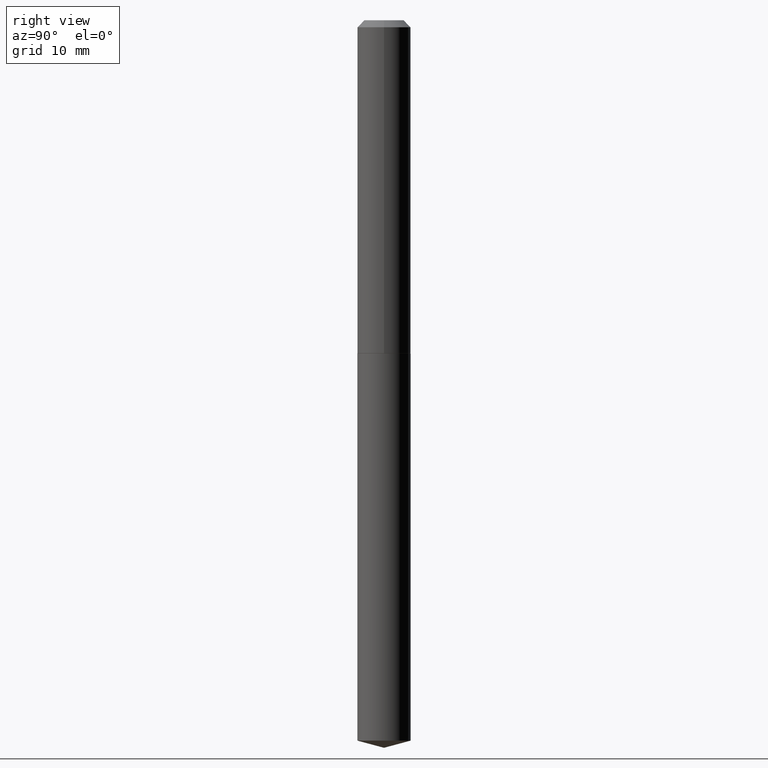
[diagram: clean part render]
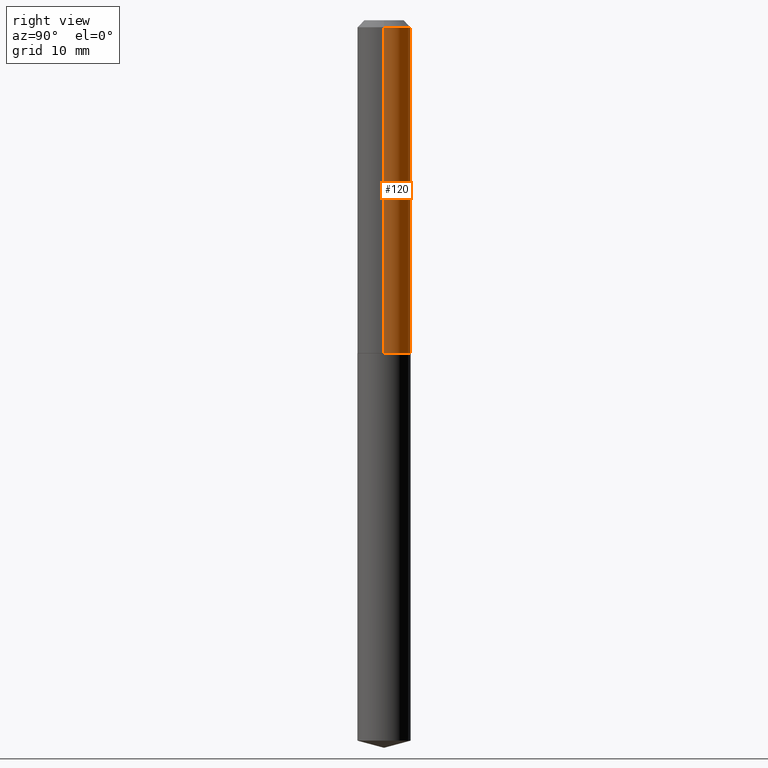
[diagram: same view with one face highlighted and labeled with its STEP entity id]
A machine part, right view. The second image highlights one B-rep face of the part: STEP entity #120.
In plain terms, the highlighted cylindrical surface (edge-blend (fillet) strip) has radius 3.0226 mm, axis along (-0, 0, 1).
Its self-contained STEP definition (entity closure, byte-faithful):
#3 = VERTEX_POINT ( 'NONE', #47 ) ;
#5 = LINE ( 'NONE', #125, #323 ) ;
#6 = FACE_OUTER_BOUND ( 'NONE', #91, .T. ) ;
#27 = DIRECTION ( 'NONE',  ( -2.445468806185136877E-29, 3.491481338843145188E-15, 1.000000000000000000 ) ) ;
#47 = CARTESIAN_POINT ( 'NONE',  ( 0.1190000000000001890, -6.024551050173846263E-15, -1.487500000000000266 ) ) ;
#48 = CARTESIAN_POINT ( 'NONE',  ( -0.1190000000000001890, -4.348032635974659038E-15, -1.487500000000000266 ) ) ;
#54 = CARTESIAN_POINT ( 'NONE',  ( 7.642090019328600035E-31, -1.091087918388489897E-16, -0.03125000000000020123 ) ) ;
#62 = CYLINDRICAL_SURFACE ( 'NONE', #105, 0.1190000000000001057 ) ;
#77 = DIRECTION ( 'NONE',  ( -2.445468806185136597E-29, 3.491481338843145583E-15, 1.000000000000000000 ) ) ;
#87 = DIRECTION ( 'NONE',  ( -2.445468806185136597E-29, 3.491481338843145583E-15, 1.000000000000000000 ) ) ;
#91 = EDGE_LOOP ( 'NONE', ( #130, #104, #333, #198 ) ) ;
#94 = VERTEX_POINT ( 'NONE', #48 ) ;
#104 = ORIENTED_EDGE ( 'NONE', *, *, #189, .T. ) ;
#105 = AXIS2_PLACEMENT_3D ( 'NONE', #365, #222, #300 ) ;
#118 = DIRECTION ( 'NONE',  ( 1.000000000000000000, -6.982962677686267499E-15, 0.000000000000000000 ) ) ;
#120 = ADVANCED_FACE ( 'NONE', ( #6 ), #62, .T. ) ;
#125 = CARTESIAN_POINT ( 'NONE',  ( 0.1190000000000001057, -8.309725586446664643E-16, 5.802650363197168610E-30 ) ) ;
#130 = ORIENTED_EDGE ( 'NONE', *, *, #149, .T. ) ;
#148 = LINE ( 'NONE', #290, #157 ) ;
#149 = EDGE_CURVE ( 'NONE', #3, #94, #190, .T. ) ;
#157 = VECTOR ( 'NONE', #27, 39.37007874015748143 ) ;
#162 = VERTEX_POINT ( 'NONE', #263 ) ;
#172 = EDGE_CURVE ( 'NONE', #316, #162, #357, .T. ) ;
#179 = AXIS2_PLACEMENT_3D ( 'NONE', #347, #77, #197 ) ;
#189 = EDGE_CURVE ( 'NONE', #94, #162, #148, .T. ) ;
#190 = CIRCLE ( 'NONE', #179, 0.1190000000000001890 ) ;
#197 = DIRECTION ( 'NONE',  ( 1.000000000000000000, -6.982962677686265133E-15, 0.000000000000000000 ) ) ;
#198 = ORIENTED_EDGE ( 'NONE', *, *, #364, .F. ) ;
#222 = DIRECTION ( 'NONE',  ( -2.445468806185136597E-29, 3.491481338843145583E-15, 1.000000000000000000 ) ) ;
#256 = AXIS2_PLACEMENT_3D ( 'NONE', #54, #87, #118 ) ;
#263 = CARTESIAN_POINT ( 'NONE',  ( -0.1190000000000000085, -1.805797786129493689E-15, -0.03125000000000020123 ) ) ;
#290 = CARTESIAN_POINT ( 'NONE',  ( -0.1190000000000001057, 8.455458555545199722E-16, -5.853532757403342650E-30 ) ) ;
#294 = CARTESIAN_POINT ( 'NONE',  ( 0.1190000000000000085, -9.400813504835147761E-16, -0.03125000000000020123 ) ) ;
#300 = DIRECTION ( 'NONE',  ( 1.000000000000000000, -6.982962677686266711E-15, 4.876176775795935793E-29 ) ) ;
#316 = VERTEX_POINT ( 'NONE', #294 ) ;
#323 = VECTOR ( 'NONE', #334, 39.37007874015748143 ) ;
#333 = ORIENTED_EDGE ( 'NONE', *, *, #172, .F. ) ;
#334 = DIRECTION ( 'NONE',  ( -2.445468806185136877E-29, 3.491481338843145188E-15, 1.000000000000000000 ) ) ;
#347 = CARTESIAN_POINT ( 'NONE',  ( 3.637634849200391024E-29, -5.193578491529179010E-15, -1.487500000000000266 ) ) ;
#357 = CIRCLE ( 'NONE', #256, 0.1190000000000000085 ) ;
#364 = EDGE_CURVE ( 'NONE', #3, #316, #5, .T. ) ;
#365 = CARTESIAN_POINT ( 'NONE',  ( 0.000000000000000000, 0.000000000000000000, 0.000000000000000000 ) ) ;